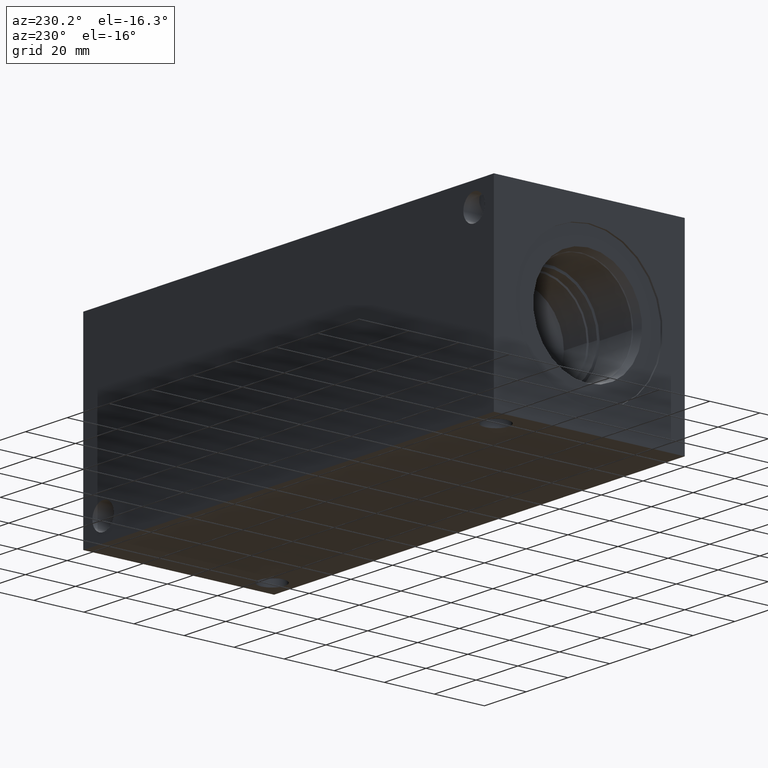
[diagram: clean part render]
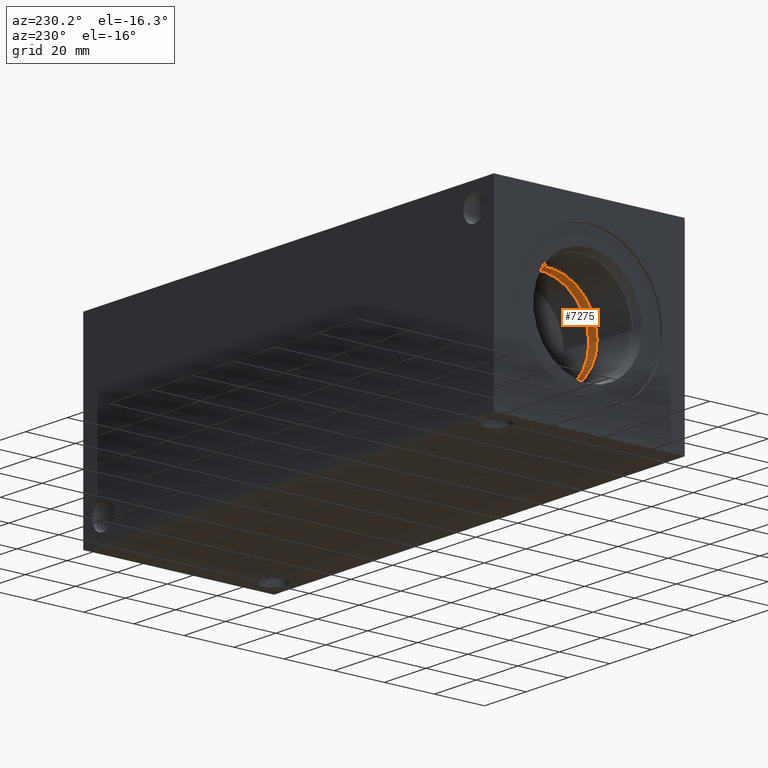
[diagram: same view with one face highlighted and labeled with its STEP entity id]
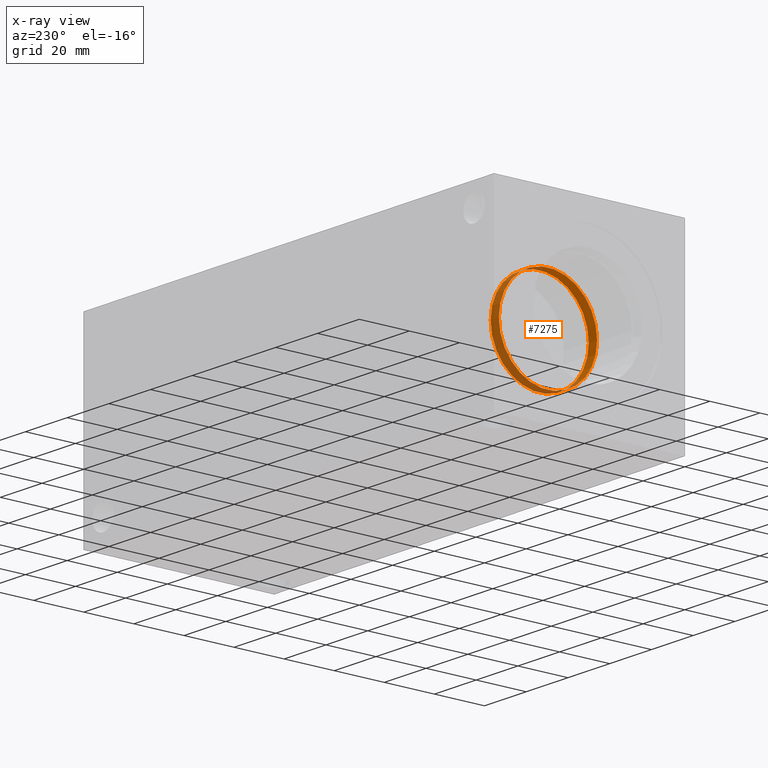
[diagram: x-ray of the same camera — body ghosted, the highlighted face saturated]
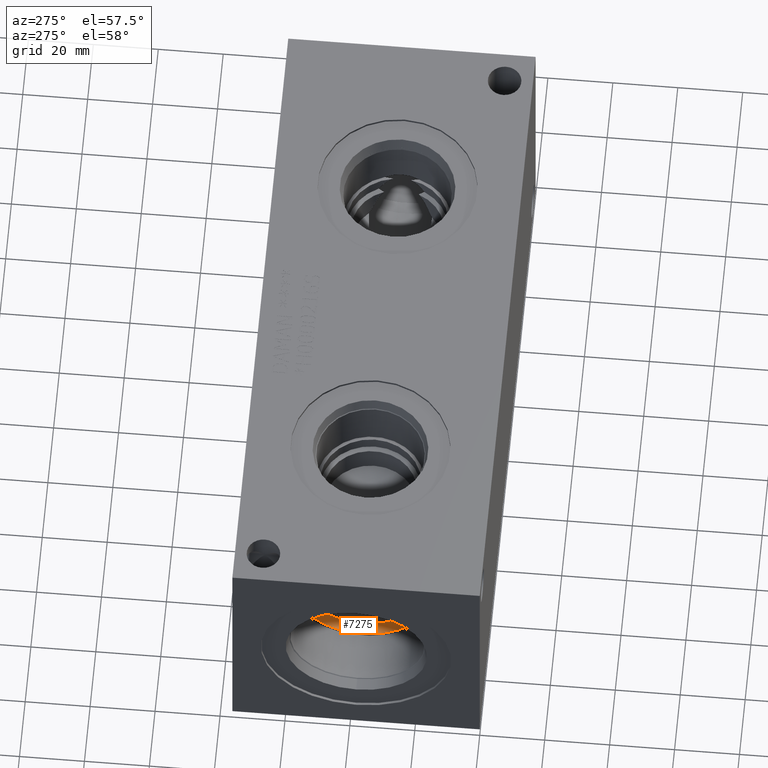
[diagram: same view with one face highlighted and labeled with its STEP entity id]
A machine part, auxiliary view. The second image highlights one B-rep face of the part: STEP entity #7275.
The next image is the same camera in x-ray: the body ghosted, the highlighted face saturated — about 50% of this face is hidden behind the body in this view.
A second angle (auxiliary view) of the same face is appended — the face is thin or edge-on in the first view.
In plain terms, the highlighted cylindrical surface (bore or boss wall) has radius 19.6088 mm, axis along (-1, 0, 0).
Its self-contained STEP definition (entity closure, byte-faithful):
#72=CYLINDRICAL_SURFACE('',#7638,19.6088);
#144=CIRCLE('',#7629,19.6088);
#145=CIRCLE('',#7630,19.6088);
#148=CIRCLE('',#7634,19.6088);
#899=FACE_OUTER_BOUND('',#1304,.T.);
#1304=EDGE_LOOP('',(#6337,#6338,#6339,#6340,#6341));
#1994=LINE('',#12663,#2676);
#2676=VECTOR('',#9007,19.6088);
#3345=VERTEX_POINT('',#12644);
#3346=VERTEX_POINT('',#12645);
#3349=VERTEX_POINT('',#12654);
#4347=EDGE_CURVE('',#3345,#3346,#144,.T.);
#4349=EDGE_CURVE('',#3346,#3345,#145,.T.);
#4352=EDGE_CURVE('',#3349,#3349,#148,.T.);
#4356=EDGE_CURVE('',#3349,#3346,#1994,.T.);
#6337=ORIENTED_EDGE('',*,*,#4352,.T.);
#6338=ORIENTED_EDGE('',*,*,#4356,.T.);
#6339=ORIENTED_EDGE('',*,*,#4347,.F.);
#6340=ORIENTED_EDGE('',*,*,#4349,.F.);
#6341=ORIENTED_EDGE('',*,*,#4356,.F.);
#7275=ADVANCED_FACE('',(#899),#72,.F.);
#7629=AXIS2_PLACEMENT_3D('',#12646,#8985,#8986);
#7630=AXIS2_PLACEMENT_3D('',#12648,#8988,#8989);
#7634=AXIS2_PLACEMENT_3D('',#12655,#8996,#8997);
#7638=AXIS2_PLACEMENT_3D('',#12662,#9005,#9006);
#8985=DIRECTION('center_axis',(-1.,0.,0.));
#8986=DIRECTION('ref_axis',(0.,1.,0.));
#8988=DIRECTION('center_axis',(-1.,0.,0.));
#8989=DIRECTION('ref_axis',(0.,1.,0.));
#8996=DIRECTION('center_axis',(-1.,0.,0.));
#8997=DIRECTION('ref_axis',(0.,1.,0.));
#9005=DIRECTION('center_axis',(-1.,0.,0.));
#9006=DIRECTION('ref_axis',(0.,1.,0.));
#9007=DIRECTION('',(1.,0.,0.));
#12644=CARTESIAN_POINT('',(23.7998,57.7088,38.1));
#12645=CARTESIAN_POINT('',(23.7998,18.4912,38.1));
#12646=CARTESIAN_POINT('Origin',(23.7998,38.1,38.1));
#12648=CARTESIAN_POINT('Origin',(23.7998,38.1,38.1));
#12654=CARTESIAN_POINT('',(19.8374,18.4912,38.1));
#12655=CARTESIAN_POINT('Origin',(19.8374,38.1,38.1));
#12662=CARTESIAN_POINT('Origin',(11.8999,38.1,38.1));
#12663=CARTESIAN_POINT('',(11.8999,18.4912,38.1));